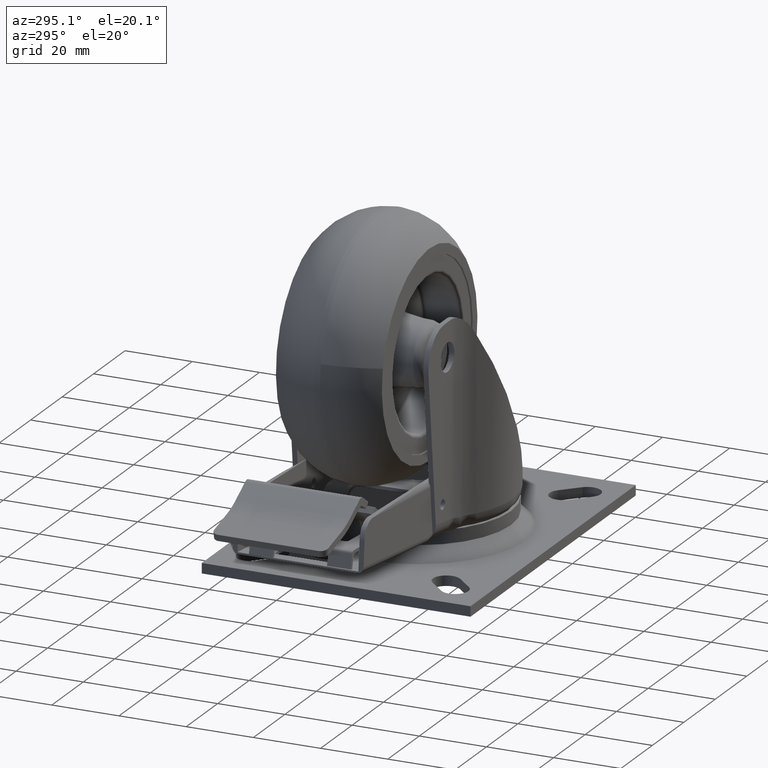
[diagram: clean part render]
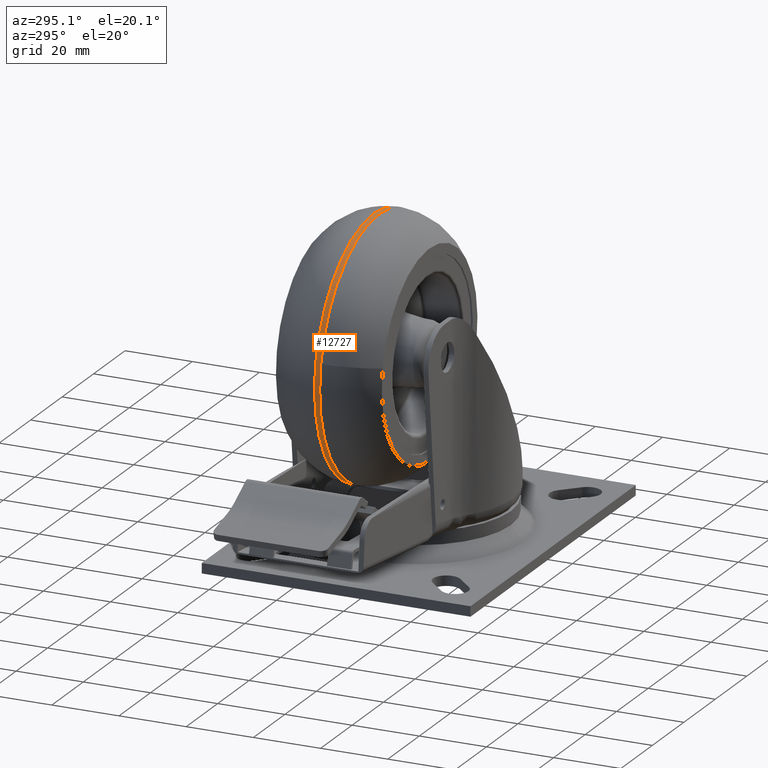
[diagram: same view with one face highlighted and labeled with its STEP entity id]
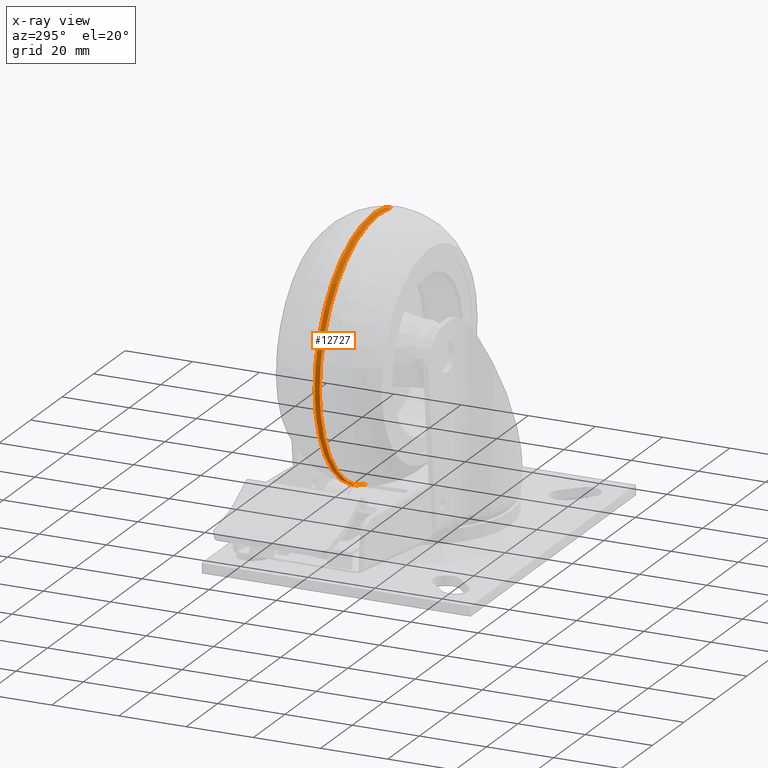
[diagram: x-ray of the same camera — body ghosted, the highlighted face saturated]
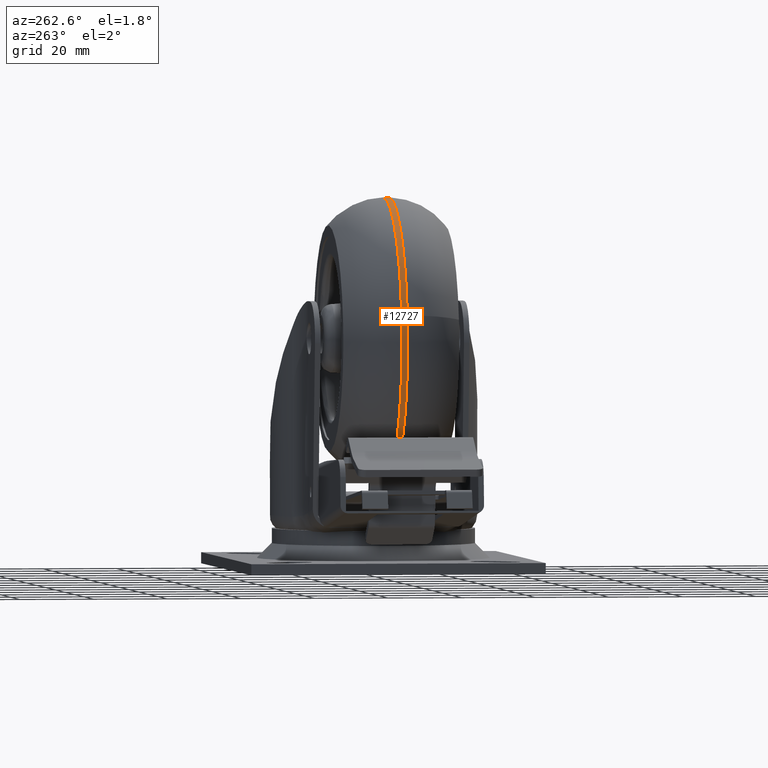
[diagram: same view with one face highlighted and labeled with its STEP entity id]
A machine part, auxiliary view. The second image highlights one B-rep face of the part: STEP entity #12727.
The next image is the same camera in x-ray: the body ghosted, the highlighted face saturated — about 0% of this face is hidden behind the body in this view.
A second angle (auxiliary view) of the same face is appended — the face is thin or edge-on in the first view.
In plain terms, the highlighted cylindrical surface (partial cylindrical patch) has radius 38 mm, axis along (0.0019, -1, -0).
Its self-contained STEP definition (entity closure, byte-faithful):
#77 = DIRECTION ( 'NONE',  ( -1.000000000000000000, 0.0000000000000000000, 0.0000000000000000000 ) ) ;
#78 = DIRECTION ( 'NONE',  ( -0.0000000000000000000, -0.0000000000000000000, 1.000000000000000000 ) ) ;
#79 = CARTESIAN_POINT ( 'NONE',  ( 0.0000000000000000000, 0.0000000000000000000, 16.51217303600000000 ) ) ;
#80 = AXIS2_PLACEMENT_3D ( 'NONE', #79, #78, #77 ) ;
#81 = CIRCLE ( 'NONE', #80, 38.00000000000000000 ) ;
#141 = DIRECTION ( 'NONE',  ( 0.0000000000000000000, 1.000000000000000000, 0.0000000000000000000 ) ) ;
#142 = DIRECTION ( 'NONE',  ( -0.0000000000000000000, 2.282530889443167400E-017, -1.000000000000000000 ) ) ;
#143 = AXIS2_PLACEMENT_3D ( 'NONE', #150, #142, #141 ) ;
#144 = CIRCLE ( 'NONE', #143, 38.00000000000000000 ) ;
#150 = CARTESIAN_POINT ( 'NONE',  ( 0.0000000000000000000, 0.0000000000000000000, 14.98782696400000000 ) ) ;
#173 = DIRECTION ( 'NONE',  ( -1.000000000000000000, 0.0000000000000000000, 0.0000000000000000000 ) ) ;
#174 = DIRECTION ( 'NONE',  ( 0.0000000000000000000, 0.0000000000000000000, -1.000000000000000000 ) ) ;
#175 = CARTESIAN_POINT ( 'NONE',  ( 0.0000000000000000000, 0.0000000000000000000, 16.51217303600000000 ) ) ;
#176 = AXIS2_PLACEMENT_3D ( 'NONE', #175, #174, #173 ) ;
#178 = CYLINDRICAL_SURFACE ( 'NONE', #176, 38.00000000000000000 ) ;
#179 = FACE_OUTER_BOUND ( 'NONE', #12728, .T. ) ;
#10710 = CARTESIAN_POINT ( 'NONE',  ( 38.00000000000000000, 4.653504144525033600E-015, 14.98782696400000000 ) ) ;
#10728 = DIRECTION ( 'NONE',  ( 0.0000000000000000000, 0.0000000000000000000, -1.000000000000000000 ) ) ;
#10729 = VECTOR ( 'NONE', #10728, 1000.000000000000000 ) ;
#10730 = CARTESIAN_POINT ( 'NONE',  ( -38.00000000000000000, 0.0000000000000000000, 16.51217303600000000 ) ) ;
#10731 = LINE ( 'NONE', #10730, #10729 ) ;
#10732 = CARTESIAN_POINT ( 'NONE',  ( -38.00000000000000000, 0.0000000000000000000, 14.98782696400000000 ) ) ;
#10738 = DIRECTION ( 'NONE',  ( 0.0000000000000000000, 0.0000000000000000000, -1.000000000000000000 ) ) ;
#10739 = VECTOR ( 'NONE', #10738, 1000.000000000000000 ) ;
#10740 = CARTESIAN_POINT ( 'NONE',  ( 38.00000000000000000, 4.653504144525033600E-015, 16.51217303600000000 ) ) ;
#10741 = LINE ( 'NONE', #10740, #10739 ) ;
#10749 = CARTESIAN_POINT ( 'NONE',  ( -38.00000000013958600, 4.653504144542127400E-015, 16.51217303600000000 ) ) ;
#10750 = CARTESIAN_POINT ( 'NONE',  ( 38.00000000013958600, 0.0000000000000000000, 16.51217303600000000 ) ) ;
#10767 = CARTESIAN_POINT ( 'NONE',  ( 0.0000000000000000000, -38.00000000013958600, 14.98782696400000000 ) ) ;
#10768 = DIRECTION ( 'NONE',  ( 0.0000000000000000000, 1.000000000000000000, 0.0000000000000000000 ) ) ;
#10769 = DIRECTION ( 'NONE',  ( -0.0000000000000000000, 2.282530889443167400E-017, -1.000000000000000000 ) ) ;
#10770 = CARTESIAN_POINT ( 'NONE',  ( 0.0000000000000000000, 0.0000000000000000000, 14.98782696400000000 ) ) ;
#10771 = AXIS2_PLACEMENT_3D ( 'NONE', #10770, #10769, #10768 ) ;
#10772 = CIRCLE ( 'NONE', #10771, 38.00000000000000000 ) ;
#12307 = EDGE_CURVE ( 'NONE', #12332, #12322, #10741, .T. ) ;
#12311 = VERTEX_POINT ( 'NONE', #10732 ) ;
#12313 = EDGE_CURVE ( 'NONE', #12333, #12311, #10731, .T. ) ;
#12322 = VERTEX_POINT ( 'NONE', #10710 ) ;
#12324 = EDGE_CURVE ( 'NONE', #12322, #12325, #10772, .T. ) ;
#12325 = VERTEX_POINT ( 'NONE', #10767 ) ;
#12332 = VERTEX_POINT ( 'NONE', #10750 ) ;
#12333 = VERTEX_POINT ( 'NONE', #10749 ) ;
#12665 = EDGE_CURVE ( 'NONE', #12333, #12332, #81, .T. ) ;
#12705 = ORIENTED_EDGE ( 'NONE', *, *, #12313, .T. ) ;
#12706 = ORIENTED_EDGE ( 'NONE', *, *, #12707, .F. ) ;
#12707 = EDGE_CURVE ( 'NONE', #12325, #12311, #144, .T. ) ;
#12708 = ORIENTED_EDGE ( 'NONE', *, *, #12324, .F. ) ;
#12727 = ADVANCED_FACE ( 'NONE', ( #179 ), #178, .T. ) ;
#12728 = EDGE_LOOP ( 'NONE', ( #12729, #12730, #12705, #12706, #12708 ) ) ;
#12729 = ORIENTED_EDGE ( 'NONE', *, *, #12307, .F. ) ;
#12730 = ORIENTED_EDGE ( 'NONE', *, *, #12665, .F. ) ;